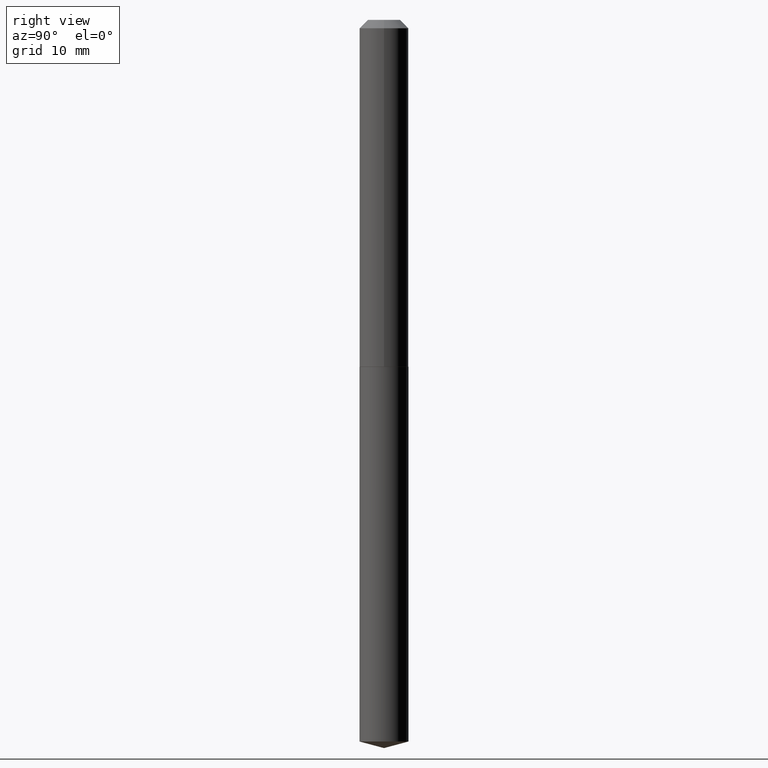
[diagram: clean part render]
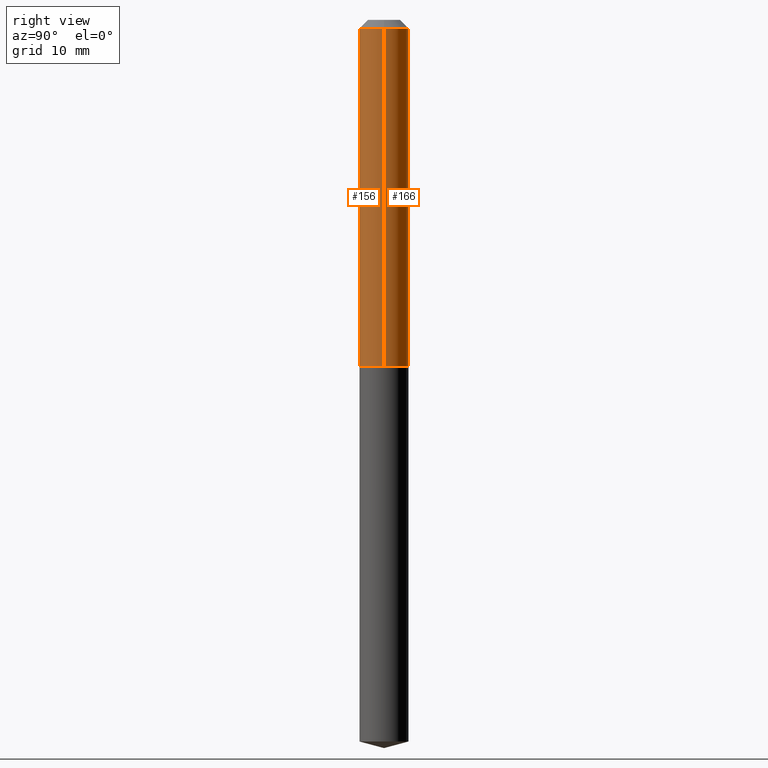
[diagram: same view with one multi-face feature highlighted, each face labeled with its STEP entity id]
A machine part, right view. The highlighted faces form ONE feature: a constant-radius fillet chain: 2 tangent blend faces with common blend radius 2.3495 mm. The faces share edges in the B-rep.
Their STEP definitions:
[1] entity #156 (Cylinder):
#4 = DIRECTION ( 'NONE',  ( 1.000000000000000000, -6.982962677686266711E-15, 0.000000000000000000 ) ) ;
#48 = EDGE_CURVE ( 'NONE', #65, #217, #196, .T. ) ;
#49 = DIRECTION ( 'NONE',  ( 1.000000000000000000, -6.982962677686272233E-15, 0.000000000000000000 ) ) ;
#53 = EDGE_CURVE ( 'NONE', #345, #65, #298, .T. ) ;
#55 = CARTESIAN_POINT ( 'NONE',  ( 0.09249999999999999889, -7.550328395248286925E-16, -0.03125000000000019429 ) ) ;
#62 = VERTEX_POINT ( 'NONE', #147 ) ;
#65 = VERTEX_POINT ( 'NONE', #295 ) ;
#90 = DIRECTION ( 'NONE',  ( -2.445468806185136877E-29, 3.491481338843145188E-15, 1.000000000000000000 ) ) ;
#107 = DIRECTION ( 'NONE',  ( -2.445468806185136877E-29, 3.491481338843145188E-15, 1.000000000000000000 ) ) ;
#113 = EDGE_LOOP ( 'NONE', ( #168, #268, #369, #190 ) ) ;
#120 = CARTESIAN_POINT ( 'NONE',  ( -0.09250000000000008216, 6.572520305780932557E-16, -4.550014958485792374E-30 ) ) ;
#125 = CYLINDRICAL_SURFACE ( 'NONE', #132, 0.09250000000000008216 ) ;
#132 = AXIS2_PLACEMENT_3D ( 'NONE', #327, #280, #326 ) ;
#147 = CARTESIAN_POINT ( 'NONE',  ( -0.09249999999999999889, -1.683349771948880148E-15, -0.03125000000000019429 ) ) ;
#156 = ADVANCED_FACE ( 'NONE', ( #250 ), #125, .T. ) ;
#160 = AXIS2_PLACEMENT_3D ( 'NONE', #235, #342, #49 ) ;
#168 = ORIENTED_EDGE ( 'NONE', *, *, #188, .F. ) ;
#188 = EDGE_CURVE ( 'NONE', #345, #62, #389, .T. ) ;
#190 = ORIENTED_EDGE ( 'NONE', *, *, #349, .F. ) ;
#196 = LINE ( 'NONE', #292, #272 ) ;
#200 = VECTOR ( 'NONE', #90, 39.37007874015748143 ) ;
#217 = VERTEX_POINT ( 'NONE', #55 ) ;
#221 = CARTESIAN_POINT ( 'NONE',  ( 7.642090019328598283E-31, -1.091087918388489651E-16, -0.03125000000000019429 ) ) ;
#235 = CARTESIAN_POINT ( 'NONE',  ( 3.202341401699436656E-29, -4.572094813215099285E-15, -1.309500000000000108 ) ) ;
#250 = FACE_OUTER_BOUND ( 'NONE', #113, .T. ) ;
#259 = DIRECTION ( 'NONE',  ( -2.445468806185136597E-29, 3.491481338843145583E-15, 1.000000000000000000 ) ) ;
#268 = ORIENTED_EDGE ( 'NONE', *, *, #53, .T. ) ;
#272 = VECTOR ( 'NONE', #107, 39.37007874015748143 ) ;
#280 = DIRECTION ( 'NONE',  ( -2.445468806185136597E-29, 3.491481338843145583E-15, 1.000000000000000000 ) ) ;
#285 = CARTESIAN_POINT ( 'NONE',  ( -0.09250000000000017930, -3.914842782637005634E-15, -1.309500000000000108 ) ) ;
#292 = CARTESIAN_POINT ( 'NONE',  ( 0.09250000000000008216, -6.459240476859802821E-16, 4.510463517611244952E-30 ) ) ;
#295 = CARTESIAN_POINT ( 'NONE',  ( 0.09250000000000017930, -5.218018860901080849E-15, -1.309500000000000108 ) ) ;
#298 = CIRCLE ( 'NONE', #160, 0.09250000000000017930 ) ;
#318 = CIRCLE ( 'NONE', #356, 0.09249999999999999889 ) ;
#326 = DIRECTION ( 'NONE',  ( 1.000000000000000000, -6.982962677686267499E-15, 4.876176775795936353E-29 ) ) ;
#327 = CARTESIAN_POINT ( 'NONE',  ( 0.000000000000000000, 0.000000000000000000, 0.000000000000000000 ) ) ;
#342 = DIRECTION ( 'NONE',  ( -2.445468806185136597E-29, 3.491481338843145583E-15, 1.000000000000000000 ) ) ;
#345 = VERTEX_POINT ( 'NONE', #285 ) ;
#349 = EDGE_CURVE ( 'NONE', #62, #217, #318, .T. ) ;
#356 = AXIS2_PLACEMENT_3D ( 'NONE', #221, #259, #4 ) ;
#369 = ORIENTED_EDGE ( 'NONE', *, *, #48, .T. ) ;
#389 = LINE ( 'NONE', #120, #200 ) ;
[2] entity #166 (Cylinder):
#48 = EDGE_CURVE ( 'NONE', #65, #217, #196, .T. ) ;
#50 = CIRCLE ( 'NONE', #137, 0.09250000000000017930 ) ;
#52 = CYLINDRICAL_SURFACE ( 'NONE', #178, 0.09250000000000008216 ) ;
#55 = CARTESIAN_POINT ( 'NONE',  ( 0.09249999999999999889, -7.550328395248286925E-16, -0.03125000000000019429 ) ) ;
#62 = VERTEX_POINT ( 'NONE', #147 ) ;
#64 = DIRECTION ( 'NONE',  ( -2.445468806185136597E-29, 3.491481338843145583E-15, 1.000000000000000000 ) ) ;
#65 = VERTEX_POINT ( 'NONE', #295 ) ;
#85 = CIRCLE ( 'NONE', #313, 0.09249999999999999889 ) ;
#87 = DIRECTION ( 'NONE',  ( 1.000000000000000000, -6.982962677686266711E-15, 0.000000000000000000 ) ) ;
#90 = DIRECTION ( 'NONE',  ( -2.445468806185136877E-29, 3.491481338843145188E-15, 1.000000000000000000 ) ) ;
#107 = DIRECTION ( 'NONE',  ( -2.445468806185136877E-29, 3.491481338843145188E-15, 1.000000000000000000 ) ) ;
#120 = CARTESIAN_POINT ( 'NONE',  ( -0.09250000000000008216, 6.572520305780932557E-16, -4.550014958485792374E-30 ) ) ;
#122 = CARTESIAN_POINT ( 'NONE',  ( 0.000000000000000000, 0.000000000000000000, 0.000000000000000000 ) ) ;
#137 = AXIS2_PLACEMENT_3D ( 'NONE', #185, #64, #286 ) ;
#147 = CARTESIAN_POINT ( 'NONE',  ( -0.09249999999999999889, -1.683349771948880148E-15, -0.03125000000000019429 ) ) ;
#166 = ADVANCED_FACE ( 'NONE', ( #245 ), #52, .T. ) ;
#177 = EDGE_CURVE ( 'NONE', #217, #62, #85, .T. ) ;
#178 = AXIS2_PLACEMENT_3D ( 'NONE', #122, #247, #325 ) ;
#185 = CARTESIAN_POINT ( 'NONE',  ( 3.202341401699436656E-29, -4.572094813215099285E-15, -1.309500000000000108 ) ) ;
#188 = EDGE_CURVE ( 'NONE', #345, #62, #389, .T. ) ;
#196 = LINE ( 'NONE', #292, #272 ) ;
#199 = ORIENTED_EDGE ( 'NONE', *, *, #48, .F. ) ;
#200 = VECTOR ( 'NONE', #90, 39.37007874015748143 ) ;
#217 = VERTEX_POINT ( 'NONE', #55 ) ;
#245 = FACE_OUTER_BOUND ( 'NONE', #367, .T. ) ;
#247 = DIRECTION ( 'NONE',  ( -2.445468806185136597E-29, 3.491481338843145583E-15, 1.000000000000000000 ) ) ;
#255 = ORIENTED_EDGE ( 'NONE', *, *, #358, .T. ) ;
#270 = ORIENTED_EDGE ( 'NONE', *, *, #177, .F. ) ;
#272 = VECTOR ( 'NONE', #107, 39.37007874015748143 ) ;
#278 = DIRECTION ( 'NONE',  ( -2.445468806185136597E-29, 3.491481338843145583E-15, 1.000000000000000000 ) ) ;
#285 = CARTESIAN_POINT ( 'NONE',  ( -0.09250000000000017930, -3.914842782637005634E-15, -1.309500000000000108 ) ) ;
#286 = DIRECTION ( 'NONE',  ( 1.000000000000000000, -6.982962677686272233E-15, 0.000000000000000000 ) ) ;
#292 = CARTESIAN_POINT ( 'NONE',  ( 0.09250000000000008216, -6.459240476859802821E-16, 4.510463517611244952E-30 ) ) ;
#295 = CARTESIAN_POINT ( 'NONE',  ( 0.09250000000000017930, -5.218018860901080849E-15, -1.309500000000000108 ) ) ;
#313 = AXIS2_PLACEMENT_3D ( 'NONE', #353, #278, #87 ) ;
#325 = DIRECTION ( 'NONE',  ( 1.000000000000000000, -6.982962677686267499E-15, 4.876176775795936353E-29 ) ) ;
#345 = VERTEX_POINT ( 'NONE', #285 ) ;
#353 = CARTESIAN_POINT ( 'NONE',  ( 7.642090019328598283E-31, -1.091087918388489651E-16, -0.03125000000000019429 ) ) ;
#358 = EDGE_CURVE ( 'NONE', #65, #345, #50, .T. ) ;
#363 = ORIENTED_EDGE ( 'NONE', *, *, #188, .T. ) ;
#367 = EDGE_LOOP ( 'NONE', ( #255, #363, #270, #199 ) ) ;
#389 = LINE ( 'NONE', #120, #200 ) ;